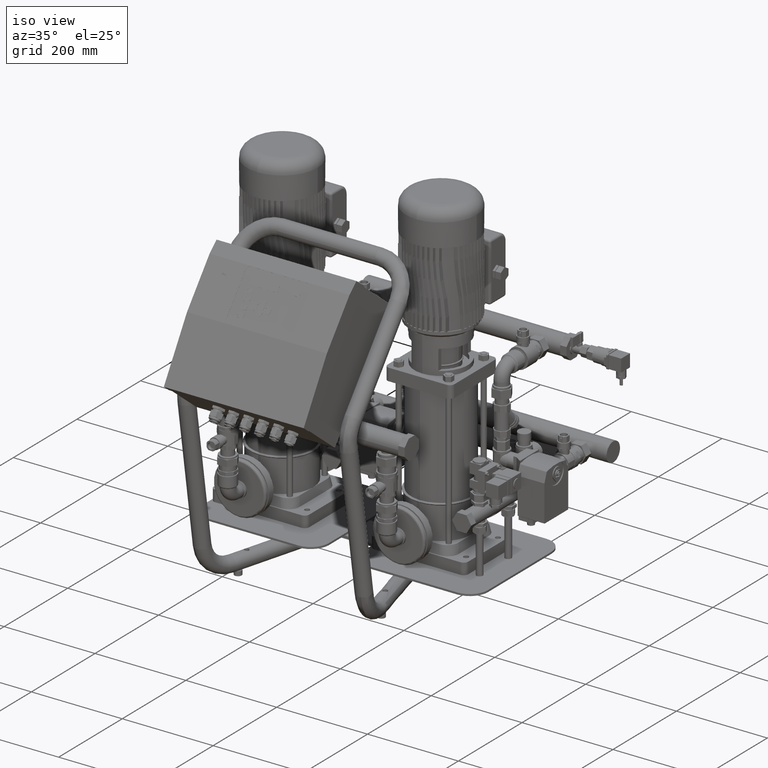
[diagram: clean part render]
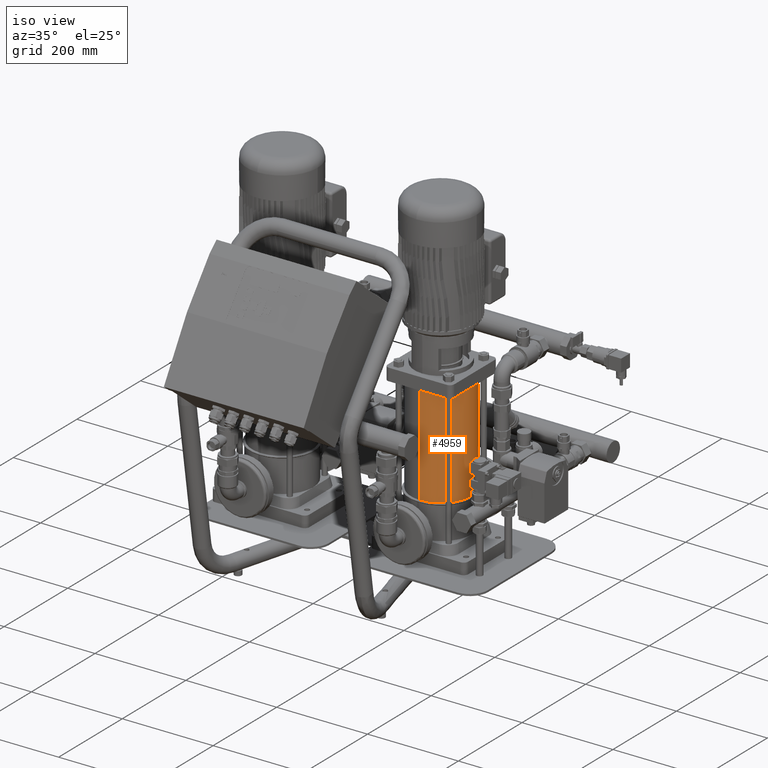
[diagram: same view with one face highlighted and labeled with its STEP entity id]
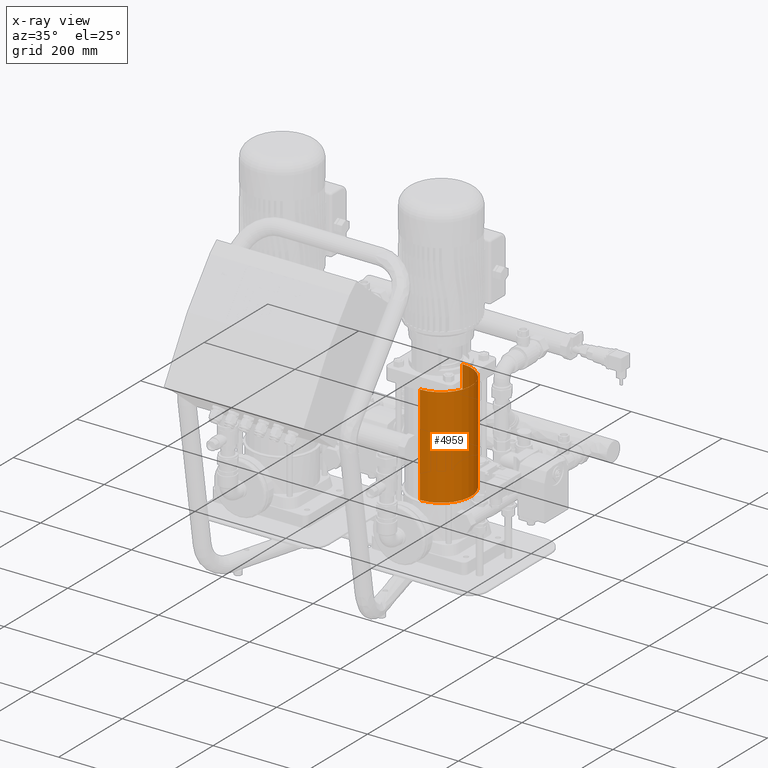
[diagram: x-ray of the same camera — body ghosted, the highlighted face saturated]
A machine part, iso view. The second image highlights one B-rep face of the part: STEP entity #4959.
The next image is the same camera in x-ray: the body ghosted, the highlighted face saturated — about 0% of this face is hidden behind the body in this view.
In plain terms, the highlighted cylindrical surface (partial cylindrical patch) has radius 66.5 mm, axis along (-0, -0, 1).
Its self-contained STEP definition (entity closure, byte-faithful):
#4918=CARTESIAN_POINT('',(142.0,-6.740315E-015,173.0));
#4919=DIRECTION('',(-3.708085E-032,-2.018587E-016,1.0));
#4920=DIRECTION('',(0.0,1.0,0.0));
#4921=AXIS2_PLACEMENT_3D('',#4918,#4919,#4920);
#4922=CYLINDRICAL_SURFACE('',#4921,66.500000000000000);
#4923=CARTESIAN_POINT('',(142.0,66.499999999999957,393.0));
#4924=VERTEX_POINT('',#4923);
#4925=CARTESIAN_POINT('',(142.0,66.500000000000000,173.0));
#4926=VERTEX_POINT('',#4925);
#4927=CARTESIAN_POINT('',(142.0,66.499999999999957,393.0));
#4928=DIRECTION('',(0.0,0.0,-1.0));
#4929=VECTOR('',#4928,220.0);
#4930=LINE('',#4927,#4929);
#4931=EDGE_CURVE('',#4924,#4926,#4930,.T.);
#4932=ORIENTED_EDGE('',*,*,#4931,.F.);
#4933=CARTESIAN_POINT('',(142.0,-66.500000000000057,393.0));
#4934=VERTEX_POINT('',#4933);
#4935=CARTESIAN_POINT('',(142.0,-5.114924E-014,393.0));
#4936=DIRECTION('',(0.0,0.0,-1.0));
#4937=DIRECTION('',(0.0,1.0,0.0));
#4938=AXIS2_PLACEMENT_3D('',#4935,#4936,#4937);
#4939=CIRCLE('',#4938,66.500000000000000);
#4940=EDGE_CURVE('',#4924,#4934,#4939,.T.);
#4941=ORIENTED_EDGE('',*,*,#4940,.T.);
#4942=CARTESIAN_POINT('',(142.0,-66.500000000000014,172.999999999999970));
#4943=VERTEX_POINT('',#4942);
#4944=CARTESIAN_POINT('',(142.0,-66.500000000000057,393.0));
#4945=DIRECTION('',(0.0,0.0,-1.0));
#4946=VECTOR('',#4945,220.000000000000030);
#4947=LINE('',#4944,#4946);
#4948=EDGE_CURVE('',#4934,#4943,#4947,.T.);
#4949=ORIENTED_EDGE('',*,*,#4948,.T.);
#4950=CARTESIAN_POINT('',(142.0,-6.740315E-015,173.0));
#4951=DIRECTION('',(0.0,0.0,-1.0));
#4952=DIRECTION('',(0.0,1.0,0.0));
#4953=AXIS2_PLACEMENT_3D('',#4950,#4951,#4952);
#4954=CIRCLE('',#4953,66.500000000000000);
#4955=EDGE_CURVE('',#4926,#4943,#4954,.T.);
#4956=ORIENTED_EDGE('',*,*,#4955,.F.);
#4957=EDGE_LOOP('',(#4932,#4941,#4949,#4956));
#4958=FACE_OUTER_BOUND('',#4957,.T.);
#4959=ADVANCED_FACE('',(#4958),#4922,.T.);